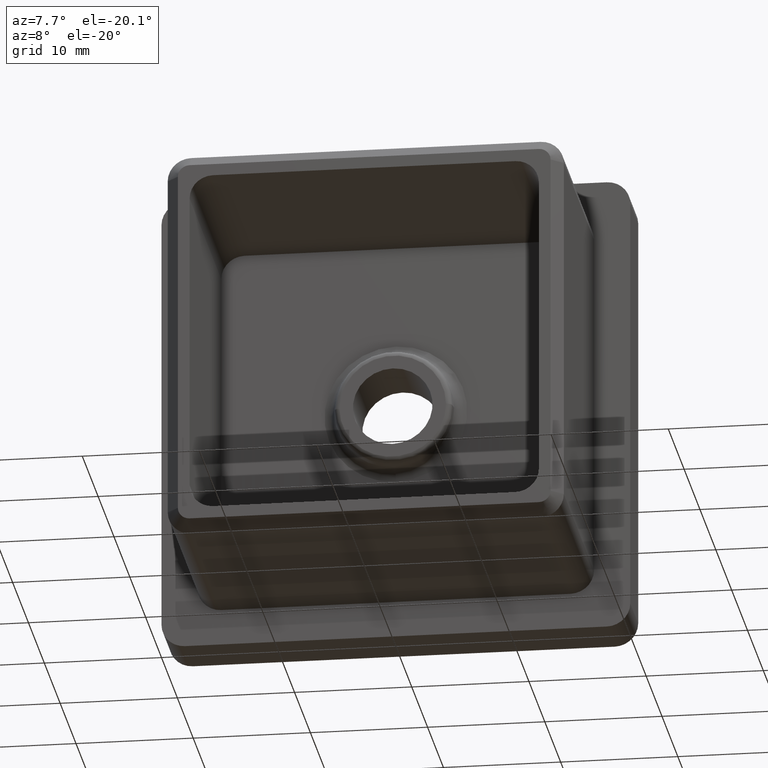
[diagram: clean part render]
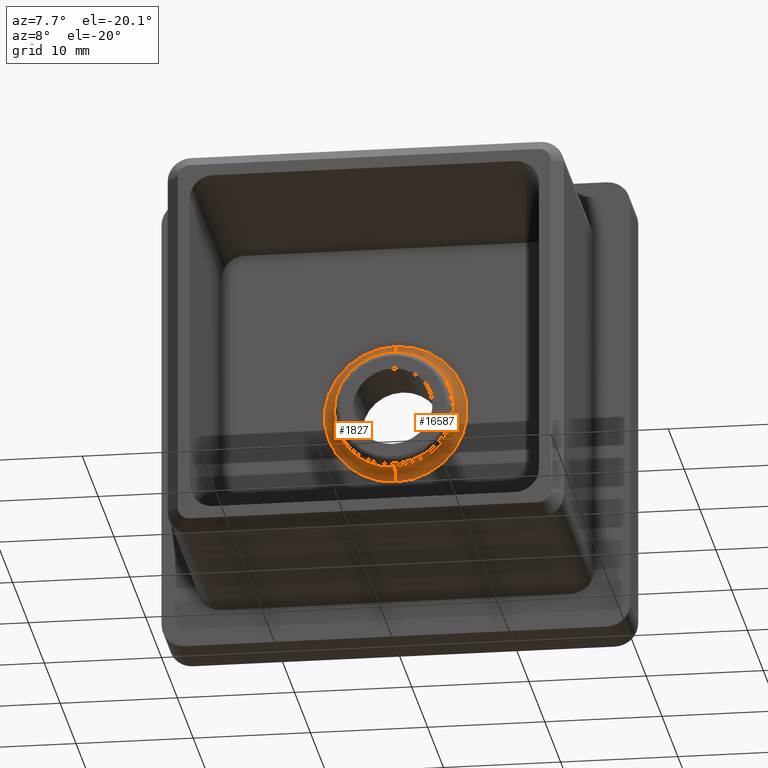
[diagram: same view with one multi-face feature highlighted, each face labeled with its STEP entity id]
A machine part, auxiliary view. The highlighted faces form ONE feature: a constant-radius fillet chain: 2 tangent blend faces with common blend radius 1 mm. The faces share edges in the B-rep.
Their STEP definitions:
[1] entity #16587 (Torus):
#127 = EDGE_CURVE ( 'NONE', #15125, #3442, #6063, .T. ) ;
#247 = TOROIDAL_SURFACE ( 'NONE', #16020, 6.091308501069263100, 1.000000000000000000 ) ;
#308 = CIRCLE ( 'NONE', #4155, 1.000000000000000000 ) ;
#1507 = CARTESIAN_POINT ( 'NONE',  ( 2.556028599677928600E-016, 0.0000000000000000000, 6.091308501069263100 ) ) ;
#2202 = CIRCLE ( 'NONE', #4869, 1.000000000000000000 ) ;
#2260 = ORIENTED_EDGE ( 'NONE', *, *, #13918, .F. ) ;
#2868 = CARTESIAN_POINT ( 'NONE',  ( 2.556028599677928600E-016, 0.0000000000000000000, 1.984021111433010100E-016 ) ) ;
#2903 = ORIENTED_EDGE ( 'NONE', *, *, #11433, .T. ) ;
#2934 = DIRECTION ( 'NONE',  ( -1.000000000000000000, -1.276755198502429000E-016, 0.0000000000000000000 ) ) ;
#3006 = ORIENTED_EDGE ( 'NONE', *, *, #9707, .F. ) ;
#3359 = CARTESIAN_POINT ( 'NONE',  ( 2.556028599677928600E-016, -1.000000000000000000, 6.091308501069263100 ) ) ;
#3442 = VERTEX_POINT ( 'NONE', #9553 ) ;
#4155 = AXIS2_PLACEMENT_3D ( 'NONE', #8276, #11224, #18298 ) ;
#4646 = AXIS2_PLACEMENT_3D ( 'NONE', #16993, #5879, #2934 ) ;
#4869 = AXIS2_PLACEMENT_3D ( 'NONE', #3359, #13234, #6186 ) ;
#5044 = DIRECTION ( 'NONE',  ( 0.0000000000000000000, 1.000000000000000000, 0.0000000000000000000 ) ) ;
#5066 = ORIENTED_EDGE ( 'NONE', *, *, #127, .F. ) ;
#5879 = DIRECTION ( 'NONE',  ( 1.224646799147353500E-016, -1.000000000000000000, 0.0000000000000000000 ) ) ;
#6063 = CIRCLE ( 'NONE', #4646, 5.095113802977517800 ) ;
#6186 = DIRECTION ( 'NONE',  ( 0.0000000000000000000, 0.0000000000000000000, 1.000000000000000000 ) ) ;
#7324 = FACE_OUTER_BOUND ( 'NONE', #15899, .T. ) ;
#7475 = EDGE_CURVE ( 'NONE', #18085, #15125, #15010, .T. ) ;
#8204 = CARTESIAN_POINT ( 'NONE',  ( 1.001573005813146500E-015, 0.0000000000000000000, -6.091308501069263100 ) ) ;
#8276 = CARTESIAN_POINT ( 'NONE',  ( 1.001573005813146500E-015, -1.000000000000000000, -6.091308501069263100 ) ) ;
#8541 = DIRECTION ( 'NONE',  ( 0.0000000000000000000, 1.000000000000000000, 0.0000000000000000000 ) ) ;
#9553 = CARTESIAN_POINT ( 'NONE',  ( 2.556028599677929600E-016, -0.9128442572523486300, 5.095113802977517800 ) ) ;
#9707 = EDGE_CURVE ( 'NONE', #16646, #18085, #308, .T. ) ;
#10270 = CARTESIAN_POINT ( 'NONE',  ( 5.095113802977517800, -0.9128442572523479700, 6.239714810107915300E-016 ) ) ;
#10418 = DIRECTION ( 'NONE',  ( 1.224646799147353500E-016, -1.000000000000000000, 0.0000000000000000000 ) ) ;
#11224 = DIRECTION ( 'NONE',  ( 1.000000000000000000, -0.0000000000000000000, 1.224646799147353200E-016 ) ) ;
#11433 = EDGE_CURVE ( 'NONE', #15073, #3442, #2202, .T. ) ;
#13234 = DIRECTION ( 'NONE',  ( -1.000000000000000000, 0.0000000000000000000, 0.0000000000000000000 ) ) ;
#13264 = DIRECTION ( 'NONE',  ( -1.000000000000000000, -1.276755198502429000E-016, 0.0000000000000000000 ) ) ;
#13519 = CARTESIAN_POINT ( 'NONE',  ( 2.556028599677928600E-016, -1.000000000000000000, 1.984021111433010100E-016 ) ) ;
#13918 = EDGE_CURVE ( 'NONE', #15073, #16646, #17356, .T. ) ;
#14055 = CARTESIAN_POINT ( 'NONE',  ( 9.405736733958655000E-016, -0.9128442572523486300, -5.095113802977517800 ) ) ;
#14221 = DIRECTION ( 'NONE',  ( 0.0000000000000000000, 0.0000000000000000000, 1.000000000000000000 ) ) ;
#14837 = AXIS2_PLACEMENT_3D ( 'NONE', #2868, #8541, #14221 ) ;
#14936 = ORIENTED_EDGE ( 'NONE', *, *, #7475, .F. ) ;
#15010 = CIRCLE ( 'NONE', #15136, 5.095113802977517800 ) ;
#15073 = VERTEX_POINT ( 'NONE', #1507 ) ;
#15125 = VERTEX_POINT ( 'NONE', #10270 ) ;
#15136 = AXIS2_PLACEMENT_3D ( 'NONE', #17437, #10418, #13264 ) ;
#15899 = EDGE_LOOP ( 'NONE', ( #3006, #2260, #2903, #5066, #14936 ) ) ;
#16020 = AXIS2_PLACEMENT_3D ( 'NONE', #13519, #5044, #16588 ) ;
#16587 = ADVANCED_FACE ( 'NONE', ( #7324 ), #247, .F. ) ;
#16588 = DIRECTION ( 'NONE',  ( 0.0000000000000000000, 0.0000000000000000000, 1.000000000000000000 ) ) ;
#16646 = VERTEX_POINT ( 'NONE', #8204 ) ;
#16993 = CARTESIAN_POINT ( 'NONE',  ( 2.556028599677928600E-016, -0.9128442572523486300, 1.984021111433010100E-016 ) ) ;
#17356 = CIRCLE ( 'NONE', #14837, 6.091308501069263100 ) ;
#17437 = CARTESIAN_POINT ( 'NONE',  ( 2.556028599677928600E-016, -0.9128442572523486300, 1.984021111433010100E-016 ) ) ;
#18085 = VERTEX_POINT ( 'NONE', #14055 ) ;
#18298 = DIRECTION ( 'NONE',  ( 1.224646799147352500E-016, 0.0000000000000000000, -1.000000000000000000 ) ) ;
[2] entity #1827 (Torus):
#160 = DIRECTION ( 'NONE',  ( 1.224646799147353500E-016, -1.000000000000000000, 0.0000000000000000000 ) ) ;
#308 = CIRCLE ( 'NONE', #4155, 1.000000000000000000 ) ;
#1507 = CARTESIAN_POINT ( 'NONE',  ( 2.556028599677928600E-016, 0.0000000000000000000, 6.091308501069263100 ) ) ;
#1827 = ADVANCED_FACE ( 'NONE', ( #17633 ), #13462, .F. ) ;
#1847 = DIRECTION ( 'NONE',  ( -1.000000000000000000, -1.276755198502429000E-016, 0.0000000000000000000 ) ) ;
#1993 = EDGE_CURVE ( 'NONE', #16646, #15073, #12985, .T. ) ;
#2202 = CIRCLE ( 'NONE', #4869, 1.000000000000000000 ) ;
#3015 = AXIS2_PLACEMENT_3D ( 'NONE', #11890, #7614, #13308 ) ;
#3359 = CARTESIAN_POINT ( 'NONE',  ( 2.556028599677928600E-016, -1.000000000000000000, 6.091308501069263100 ) ) ;
#3442 = VERTEX_POINT ( 'NONE', #9553 ) ;
#3589 = CARTESIAN_POINT ( 'NONE',  ( 2.556028599677928600E-016, 0.0000000000000000000, 1.984021111433010100E-016 ) ) ;
#4155 = AXIS2_PLACEMENT_3D ( 'NONE', #8276, #11224, #18298 ) ;
#4869 = AXIS2_PLACEMENT_3D ( 'NONE', #3359, #13234, #6186 ) ;
#4994 = DIRECTION ( 'NONE',  ( 0.0000000000000000000, 1.000000000000000000, 0.0000000000000000000 ) ) ;
#6186 = DIRECTION ( 'NONE',  ( 0.0000000000000000000, 0.0000000000000000000, 1.000000000000000000 ) ) ;
#7614 = DIRECTION ( 'NONE',  ( 0.0000000000000000000, 1.000000000000000000, 0.0000000000000000000 ) ) ;
#7670 = DIRECTION ( 'NONE',  ( -1.000000000000000000, -1.276755198502429000E-016, 0.0000000000000000000 ) ) ;
#8204 = CARTESIAN_POINT ( 'NONE',  ( 1.001573005813146500E-015, 0.0000000000000000000, -6.091308501069263100 ) ) ;
#8263 = VERTEX_POINT ( 'NONE', #13549 ) ;
#8276 = CARTESIAN_POINT ( 'NONE',  ( 1.001573005813146500E-015, -1.000000000000000000, -6.091308501069263100 ) ) ;
#8777 = EDGE_LOOP ( 'NONE', ( #17439, #14813, #16784, #9152, #17440 ) ) ;
#9152 = ORIENTED_EDGE ( 'NONE', *, *, #17697, .F. ) ;
#9553 = CARTESIAN_POINT ( 'NONE',  ( 2.556028599677929600E-016, -0.9128442572523486300, 5.095113802977517800 ) ) ;
#9635 = AXIS2_PLACEMENT_3D ( 'NONE', #3589, #4994, #16187 ) ;
#9707 = EDGE_CURVE ( 'NONE', #16646, #18085, #308, .T. ) ;
#10953 = EDGE_CURVE ( 'NONE', #8263, #18085, #17395, .T. ) ;
#11224 = DIRECTION ( 'NONE',  ( 1.000000000000000000, -0.0000000000000000000, 1.224646799147353200E-016 ) ) ;
#11433 = EDGE_CURVE ( 'NONE', #15073, #3442, #2202, .T. ) ;
#11890 = CARTESIAN_POINT ( 'NONE',  ( 2.556028599677928600E-016, -1.000000000000000000, 1.984021111433010100E-016 ) ) ;
#12097 = AXIS2_PLACEMENT_3D ( 'NONE', #16007, #14650, #7670 ) ;
#12820 = CARTESIAN_POINT ( 'NONE',  ( 2.556028599677928600E-016, -0.9128442572523486300, 1.984021111433010100E-016 ) ) ;
#12985 = CIRCLE ( 'NONE', #9635, 6.091308501069263100 ) ;
#13234 = DIRECTION ( 'NONE',  ( -1.000000000000000000, 0.0000000000000000000, 0.0000000000000000000 ) ) ;
#13308 = DIRECTION ( 'NONE',  ( 0.0000000000000000000, 0.0000000000000000000, 1.000000000000000000 ) ) ;
#13462 = TOROIDAL_SURFACE ( 'NONE', #3015, 6.091308501069263100, 1.000000000000000000 ) ;
#13549 = CARTESIAN_POINT ( 'NONE',  ( -5.095113802977517800, -0.9128442572523493000, 0.0000000000000000000 ) ) ;
#13680 = AXIS2_PLACEMENT_3D ( 'NONE', #12820, #160, #1847 ) ;
#14055 = CARTESIAN_POINT ( 'NONE',  ( 9.405736733958655000E-016, -0.9128442572523486300, -5.095113802977517800 ) ) ;
#14650 = DIRECTION ( 'NONE',  ( 1.224646799147353500E-016, -1.000000000000000000, 0.0000000000000000000 ) ) ;
#14813 = ORIENTED_EDGE ( 'NONE', *, *, #9707, .T. ) ;
#15073 = VERTEX_POINT ( 'NONE', #1507 ) ;
#16007 = CARTESIAN_POINT ( 'NONE',  ( 2.556028599677928600E-016, -0.9128442572523486300, 1.984021111433010100E-016 ) ) ;
#16187 = DIRECTION ( 'NONE',  ( 0.0000000000000000000, 0.0000000000000000000, 1.000000000000000000 ) ) ;
#16646 = VERTEX_POINT ( 'NONE', #8204 ) ;
#16784 = ORIENTED_EDGE ( 'NONE', *, *, #10953, .F. ) ;
#17395 = CIRCLE ( 'NONE', #12097, 5.095113802977517800 ) ;
#17439 = ORIENTED_EDGE ( 'NONE', *, *, #1993, .F. ) ;
#17440 = ORIENTED_EDGE ( 'NONE', *, *, #11433, .F. ) ;
#17445 = CIRCLE ( 'NONE', #13680, 5.095113802977517800 ) ;
#17633 = FACE_OUTER_BOUND ( 'NONE', #8777, .T. ) ;
#17697 = EDGE_CURVE ( 'NONE', #3442, #8263, #17445, .T. ) ;
#18085 = VERTEX_POINT ( 'NONE', #14055 ) ;
#18298 = DIRECTION ( 'NONE',  ( 1.224646799147352500E-016, 0.0000000000000000000, -1.000000000000000000 ) ) ;